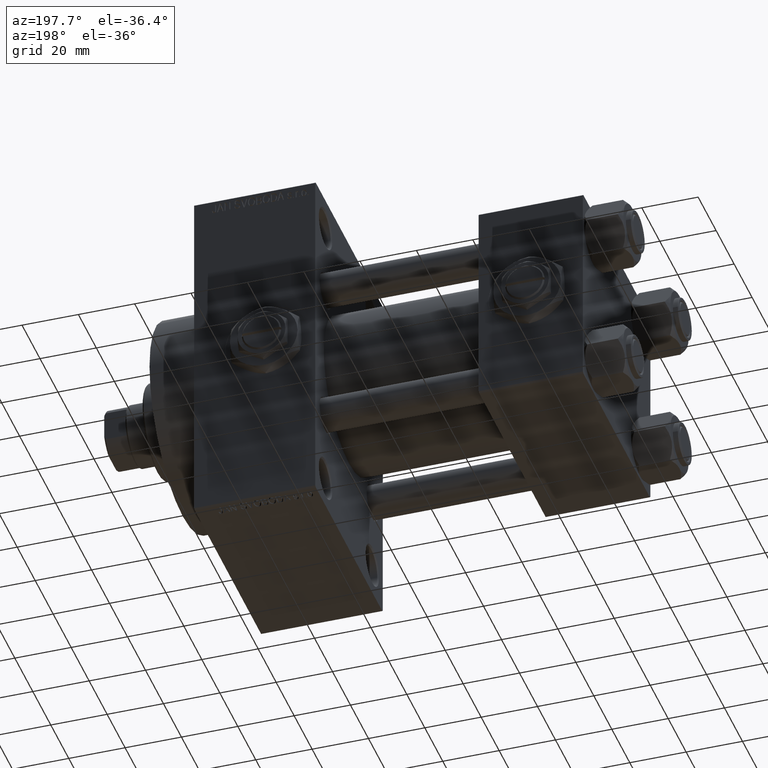
[diagram: clean part render]
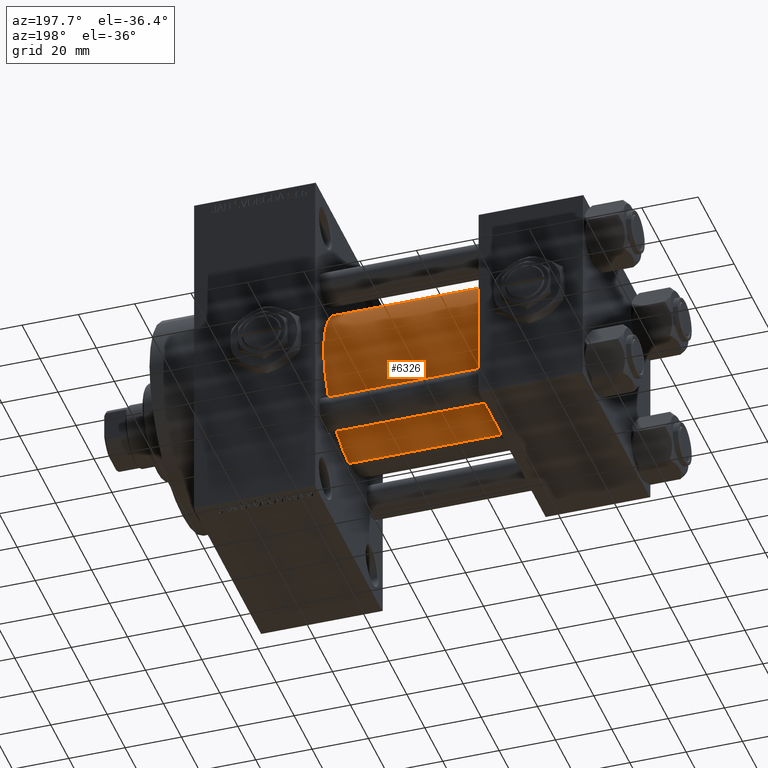
[diagram: same view with one face highlighted and labeled with its STEP entity id]
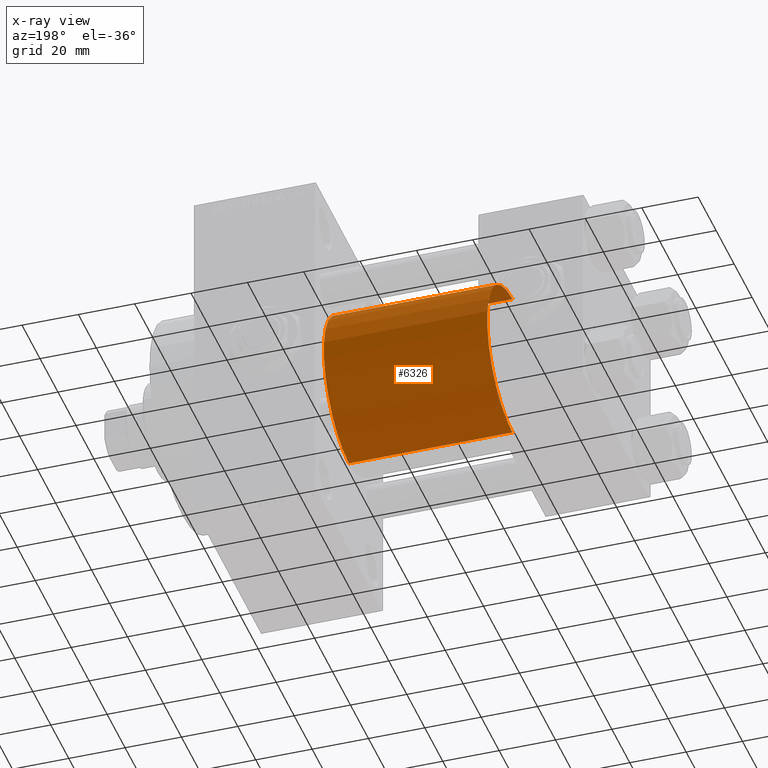
[diagram: x-ray of the same camera — body ghosted, the highlighted face saturated]
A machine part, auxiliary view. The second image highlights one B-rep face of the part: STEP entity #6326.
The next image is the same camera in x-ray: the body ghosted, the highlighted face saturated — about 1% of this face is hidden behind the body in this view.
In plain terms, the highlighted cylindrical surface (partial cylindrical patch) has radius 28 mm, axis along (-1, -0, -0).
Its self-contained STEP definition (entity closure, byte-faithful):
#572 = CIRCLE ( 'NONE', #29187, 28.00000000000000000 ) ;
#642 = CARTESIAN_POINT ( 'NONE',  ( 95.00000000000000000, -2.602085213965210642E-15, 28.00000000000000000 ) ) ;
#1641 = DIRECTION ( 'NONE',  ( -1.000000000000000000, -0.000000000000000000, -0.000000000000000000 ) ) ;
#2421 = CARTESIAN_POINT ( 'NONE',  ( 37.00000000000000000, -2.602085213965210642E-15, 0.000000000000000000 ) ) ;
#2741 = CARTESIAN_POINT ( 'NONE',  ( 95.00000000000000000, 8.269258236473776482E-16, -28.00000000000000000 ) ) ;
#2759 = DIRECTION ( 'NONE',  ( 1.000000000000000000, 0.000000000000000000, 0.000000000000000000 ) ) ;
#3291 = VERTEX_POINT ( 'NONE', #28850 ) ;
#3976 = ORIENTED_EDGE ( 'NONE', *, *, #15910, .T. ) ;
#4681 = CARTESIAN_POINT ( 'NONE',  ( 95.00000000000000000, 8.269258236473776482E-16, -28.00000000000000000 ) ) ;
#5271 = EDGE_CURVE ( 'NONE', #11491, #9865, #23315, .T. ) ;
#6075 = CARTESIAN_POINT ( 'NONE',  ( 95.00000000000000000, -2.602085213965210642E-15, 28.00000000000000000 ) ) ;
#6326 = ADVANCED_FACE ( 'NONE', ( #20202 ), #31432, .T. ) ;
#8514 = DIRECTION ( 'NONE',  ( -1.000000000000000000, -0.000000000000000000, -0.000000000000000000 ) ) ;
#9671 = ORIENTED_EDGE ( 'NONE', *, *, #36223, .T. ) ;
#9865 = VERTEX_POINT ( 'NONE', #6075 ) ;
#10459 = VERTEX_POINT ( 'NONE', #27046 ) ;
#11491 = VERTEX_POINT ( 'NONE', #2741 ) ;
#11561 = EDGE_LOOP ( 'NONE', ( #32613, #9671, #3976, #41418 ) ) ;
#15900 = VECTOR ( 'NONE', #46550, 1000.000000000000000 ) ;
#15910 = EDGE_CURVE ( 'NONE', #10459, #3291, #572, .T. ) ;
#17572 = DIRECTION ( 'NONE',  ( 0.000000000000000000, 0.000000000000000000, 1.000000000000000000 ) ) ;
#19882 = VECTOR ( 'NONE', #1641, 1000.000000000000000 ) ;
#20202 = FACE_OUTER_BOUND ( 'NONE', #11561, .T. ) ;
#23315 = CIRCLE ( 'NONE', #43248, 28.00000000000000000 ) ;
#27046 = CARTESIAN_POINT ( 'NONE',  ( 37.00000000000000000, 8.269258236473776482E-16, -28.00000000000000000 ) ) ;
#28850 = CARTESIAN_POINT ( 'NONE',  ( 37.00000000000000000, -2.602085213965210642E-15, 28.00000000000000000 ) ) ;
#29187 = AXIS2_PLACEMENT_3D ( 'NONE', #2421, #48025, #17572 ) ;
#31432 = CYLINDRICAL_SURFACE ( 'NONE', #33387, 28.00000000000000000 ) ;
#32613 = ORIENTED_EDGE ( 'NONE', *, *, #5271, .F. ) ;
#33387 = AXIS2_PLACEMENT_3D ( 'NONE', #42673, #8514, #38928 ) ;
#35755 = LINE ( 'NONE', #642, #19882 ) ;
#36223 = EDGE_CURVE ( 'NONE', #11491, #10459, #47044, .T. ) ;
#36548 = EDGE_CURVE ( 'NONE', #9865, #3291, #35755, .T. ) ;
#37375 = CARTESIAN_POINT ( 'NONE',  ( 95.00000000000000000, -2.602085213965210642E-15, 0.000000000000000000 ) ) ;
#37624 = DIRECTION ( 'NONE',  ( 0.000000000000000000, 0.000000000000000000, -1.000000000000000000 ) ) ;
#38928 = DIRECTION ( 'NONE',  ( 0.000000000000000000, 0.000000000000000000, 1.000000000000000000 ) ) ;
#41418 = ORIENTED_EDGE ( 'NONE', *, *, #36548, .F. ) ;
#42673 = CARTESIAN_POINT ( 'NONE',  ( 95.00000000000000000, -2.602085213965210642E-15, 0.000000000000000000 ) ) ;
#43248 = AXIS2_PLACEMENT_3D ( 'NONE', #37375, #2759, #37624 ) ;
#46550 = DIRECTION ( 'NONE',  ( -1.000000000000000000, -0.000000000000000000, -0.000000000000000000 ) ) ;
#47044 = LINE ( 'NONE', #4681, #15900 ) ;
#48025 = DIRECTION ( 'NONE',  ( 1.000000000000000000, -0.000000000000000000, 0.000000000000000000 ) ) ;